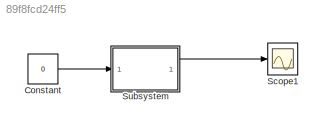
MODEL slx_89f8fcd24ff5
KIND model
CONFIG AbsTol = auto
CONFIG EnableMultiTasking = off
CONFIG FixedStep = auto
CONFIG MaxStep = auto
CONFIG MinStep = auto
CONFIG RelTol = 1e-3
CONFIG SampleTimeConstraint = Unconstrained
CONFIG SolverName = VariableStepAuto
CONFIG StartTime = 0.0
CONFIG StopTime = 100
BLOCK [Constant] Constant
  Value = 0
BLOCK [Scope] Scope1
  Floating = off
  NumInputPorts = 1
  ScopeSpecificationString = Simulink.scopes.TimeScopeBlockCfg('CurrentConfiguration', extmgr.ConfigurationSet(extmgr.Configuration('Core','General UI',true),extmgr.Configuration('Core','Source UI',true),extmgr.Configuration('Sources','WiredSimulink',true,'DataLoggingVariableName','ScopeData1'),extmgr.Configuration('Visuals','Time Domain',true,'SerializedDisplays',{struct('MinYLimReal','-0.49401','MaxYLimReal','0.83267','YLab...<+1492ch>
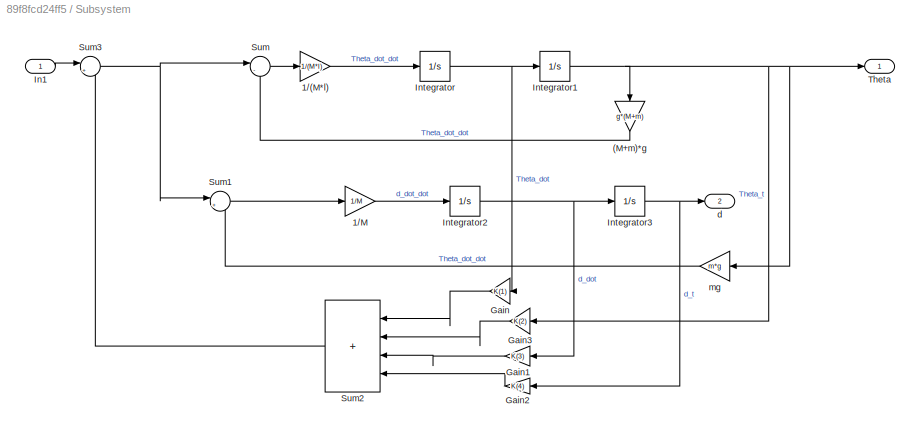
BLOCK [SubSystem] Subsystem
BLOCK [Gain] Subsystem/(M+m)*g
  Gain = g*(M+m)
  NameLocation = left
BLOCK [Gain] Subsystem/1//(M*l)
  Gain = 1/(M*l)
BLOCK [Gain] Subsystem/1//M
  Gain = 1/M
BLOCK [Gain] Subsystem/Gain
  Gain = K(1)
  NameLocation = top
BLOCK [Gain] Subsystem/Gain1
  Gain = K(3)
  NameLocation = top
BLOCK [Gain] Subsystem/Gain2
  Gain = K(4)
  NameLocation = top
BLOCK [Gain] Subsystem/Gain3
  Gain = K(2)
  NameLocation = top
BLOCK [Inport] Subsystem/In1
BLOCK [Integrator] Subsystem/Integrator
BLOCK [Integrator] Subsystem/Integrator1
  InitialCondition = 0.7
BLOCK [Integrator] Subsystem/Integrator2
BLOCK [Integrator] Subsystem/Integrator3
BLOCK [Sum] Subsystem/Sum
  Inputs = |-+
BLOCK [Sum] Subsystem/Sum1
  Inputs = |+-
BLOCK [Sum] Subsystem/Sum2
  IconShape = rectangular
  Inputs = |++++
  NameLocation = top
BLOCK [Sum] Subsystem/Sum3
  Inputs = |+-
BLOCK [Outport] Subsystem/Theta
BLOCK [Outport] Subsystem/d
  Port = 2
BLOCK [Gain] Subsystem/mg
  Gain = m*g
  NameLocation = top
LINE Constant:1 -> Subsystem:1
LINE Subsystem/(M+m)*g:1 -> Subsystem/Sum:2
LINE Subsystem/1//(M*l):1 -> Subsystem/Integrator:1
LINE Subsystem/1//M:1 -> Subsystem/Integrator2:1
LINE Subsystem/Gain1:1 -> Subsystem/Sum2:3
LINE Subsystem/Gain2:1 -> Subsystem/Sum2:4
LINE Subsystem/Gain3:1 -> Subsystem/Sum2:2
LINE Subsystem/Gain:1 -> Subsystem/Sum2:1
LINE Subsystem/In1:1 -> Subsystem/Sum3:1
NET Subsystem/Integrator1:1 -> Subsystem/(M+m)*g:1, Subsystem/Gain3:1, Subsystem/Theta:1, Subsystem/mg:1
NET Subsystem/Integrator2:1 -> Subsystem/Gain1:1, Subsystem/Integrator3:1
NET Subsystem/Integrator3:1 -> Subsystem/Gain2:1, Subsystem/d:1
NET Subsystem/Integrator:1 -> Subsystem/Gain:1, Subsystem/Integrator1:1
LINE Subsystem/Sum1:1 -> Subsystem/1//M:1
LINE Subsystem/Sum2:1 -> Subsystem/Sum3:2
NET Subsystem/Sum3:1 -> Subsystem/Sum1:1, Subsystem/Sum:1
LINE Subsystem/Sum:1 -> Subsystem/1//(M*l):1
LINE Subsystem/mg:1 -> Subsystem/Sum1:2
LINE Subsystem:1 -> Scope1:1
note: NET lines group one-source signal fan-out (src -> all destinations, sorted); 1:1 wires keep LINE
